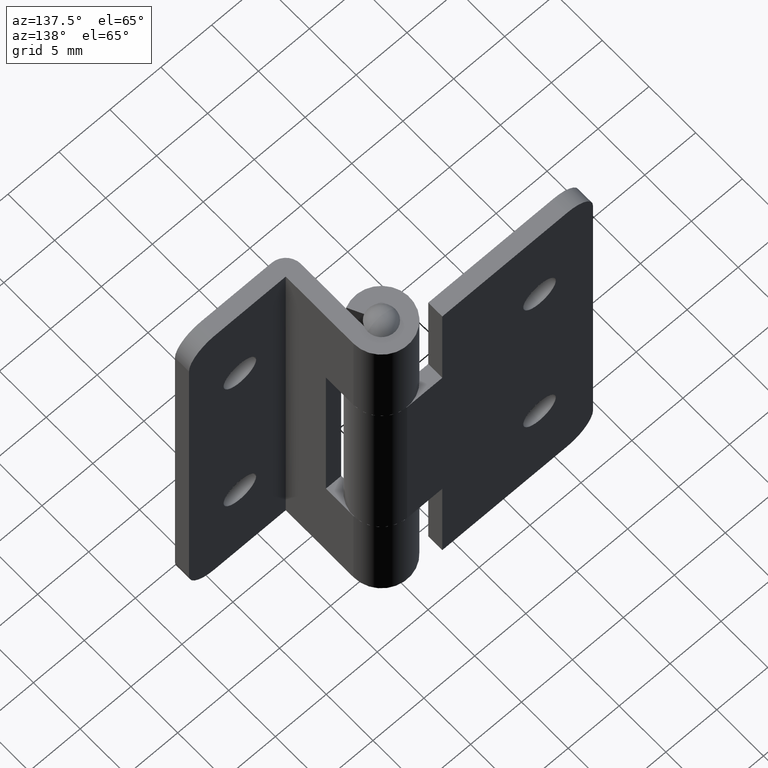
[diagram: clean part render]
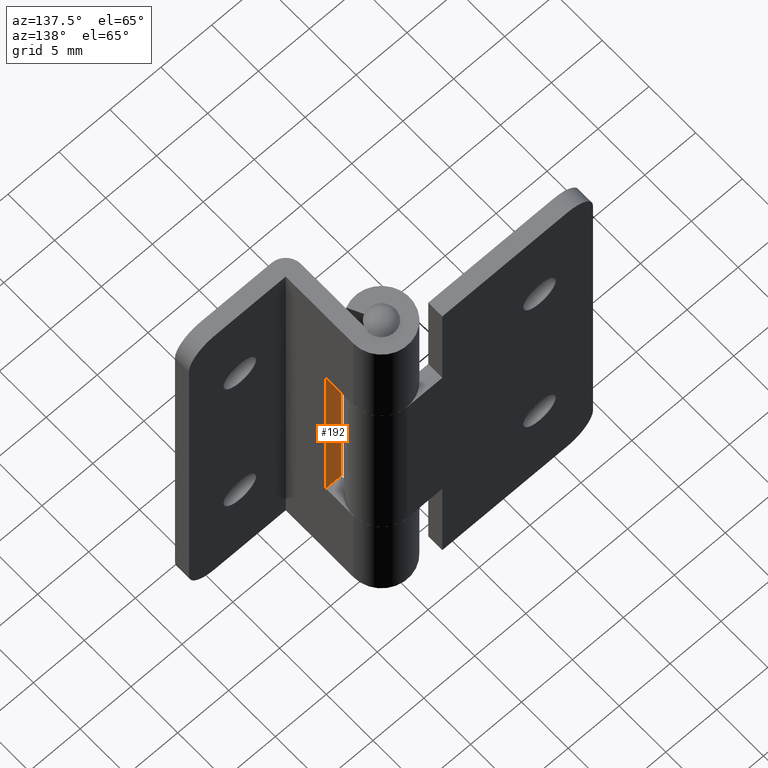
[diagram: same view with one face highlighted and labeled with its STEP entity id]
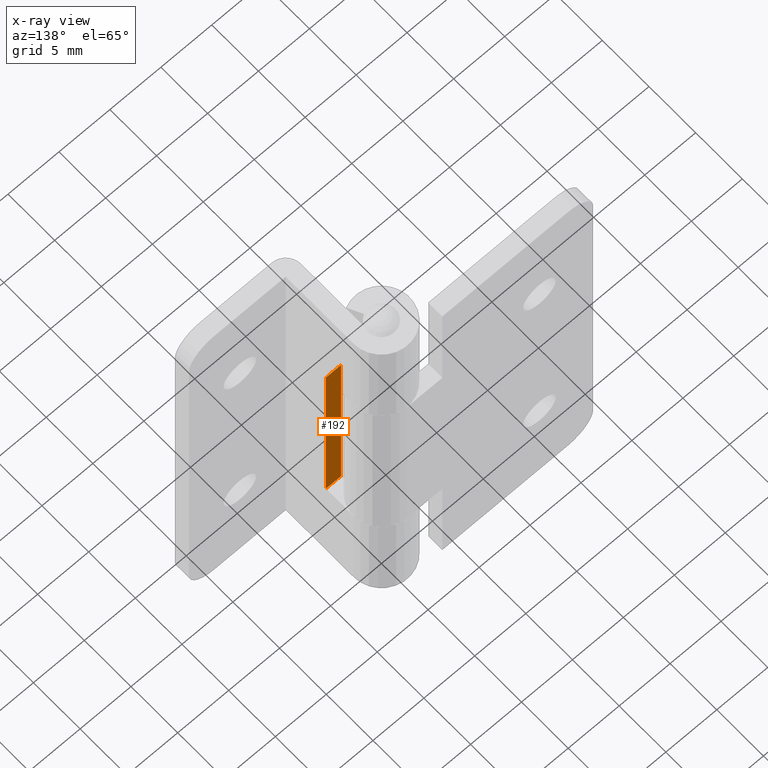
[diagram: x-ray of the same camera — body ghosted, the highlighted face saturated]
A machine part, auxiliary view. The second image highlights one B-rep face of the part: STEP entity #192.
The next image is the same camera in x-ray: the body ghosted, the highlighted face saturated — about 0% of this face is hidden behind the body in this view.
In plain terms, the highlighted planar face has unit normal (0, 1, 0).
Its self-contained STEP definition (entity closure, byte-faithful):
#192=ADVANCED_FACE('',(#639),#638,.T.);
#638=PLANE('',#926);
#639=FACE_OUTER_BOUND('',#927,.T.);
#923=CARTESIAN_POINT('',(1.10000000000E+00,1.14000000000E+01,-2.95000399994E+00));
#924=DIRECTION('',(0.00000000000E+00,-9.87194609684E-14,1.00000000000E+00));
#925=DIRECTION('',(0.00000000000E+00,-1.00000000000E+00,-9.87194609684E-14));
#926=AXIS2_PLACEMENT_3D('',#923,#924,#925);
#927=EDGE_LOOP('',(#1179,#1180,#1181,#1182));
#1179=ORIENTED_EDGE('',*,*,#1306,.T.);
#1180=ORIENTED_EDGE('',*,*,#1318,.F.);
#1181=ORIENTED_EDGE('',*,*,#1307,.F.);
#1182=ORIENTED_EDGE('',*,*,#1275,.F.);
#1275=EDGE_CURVE('',#1806,#1813,#1814,.T.);
#1306=EDGE_CURVE('',#1806,#2015,#2022,.T.);
#1307=EDGE_CURVE('',#1813,#2028,#2029,.T.);
#1318=EDGE_CURVE('',#2028,#2015,#2102,.T.);
#1806=VERTEX_POINT('',#2449);
#1813=VERTEX_POINT('',#2453);
#1814=LINE('',#2454,#2455);
#2015=VERTEX_POINT('',#2577);
#2022=LINE('',#2581,#2582);
#2028=VERTEX_POINT('',#2584);
#2029=LINE('',#2585,#2586);
#2102=LINE('',#2631,#2632);
#2449=CARTESIAN_POINT('',(2.74999999999E+00,9.50000000000E+00,-2.95000399994E+00));
#2453=CARTESIAN_POINT('',(2.74999999999E+00,-9.50000000000E+00,-2.95000399994E+00));
#2454=CARTESIAN_POINT('',(2.75000000000E+00,9.50000000000E+00,-2.95000399994E+00));
#2455=VECTOR('',#2456,1.90000000000E+01);
#2456=DIRECTION('',(0.00000000000E+00,-1.00000000000E+00,-9.87046701683E-14));
#2577=CARTESIAN_POINT('',(1.25000000000E+00,9.50000000000E+00,-2.95000399994E+00));
#2581=CARTESIAN_POINT('',(2.75000000000E+00,9.50000000000E+00,-2.95000399994E+00));
#2582=VECTOR('',#2583,1.50000000000E+00);
#2583=DIRECTION('',(-1.00000000000E+00,0.00000000000E+00,0.00000000000E+00));
#2584=CARTESIAN_POINT('',(1.25000000000E+00,-9.50000000000E+00,-2.95000399994E+00));
#2585=CARTESIAN_POINT('',(2.75000000000E+00,-9.50000000000E+00,-2.95000399994E+00));
#2586=VECTOR('',#2587,1.50000000000E+00);
#2587=DIRECTION('',(-1.00000000000E+00,0.00000000000E+00,0.00000000000E+00));
#2631=CARTESIAN_POINT('',(1.25000000000E+00,-9.50000000000E+00,-2.95000399994E+00));
#2632=VECTOR('',#2633,1.90000000000E+01);
#2633=DIRECTION('',(0.00000000000E+00,1.00000000000E+00,9.87046701683E-14));